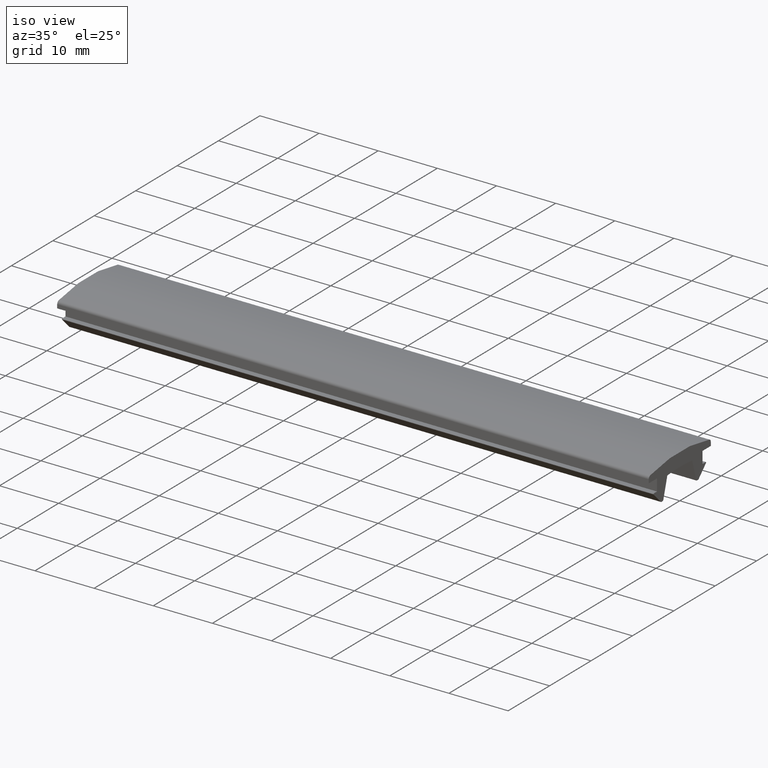
[diagram: clean part render]
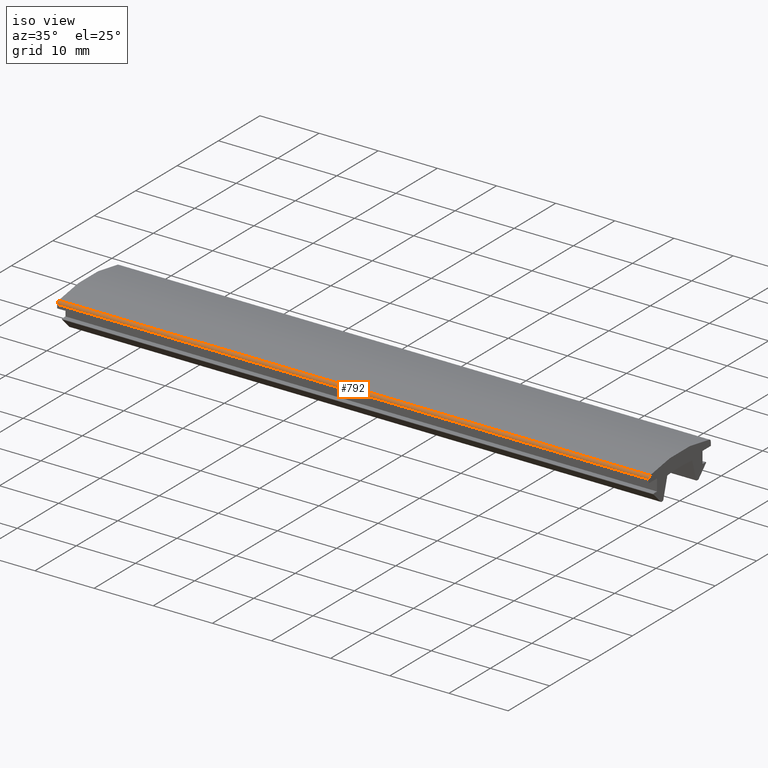
[diagram: same view with one face highlighted and labeled with its STEP entity id]
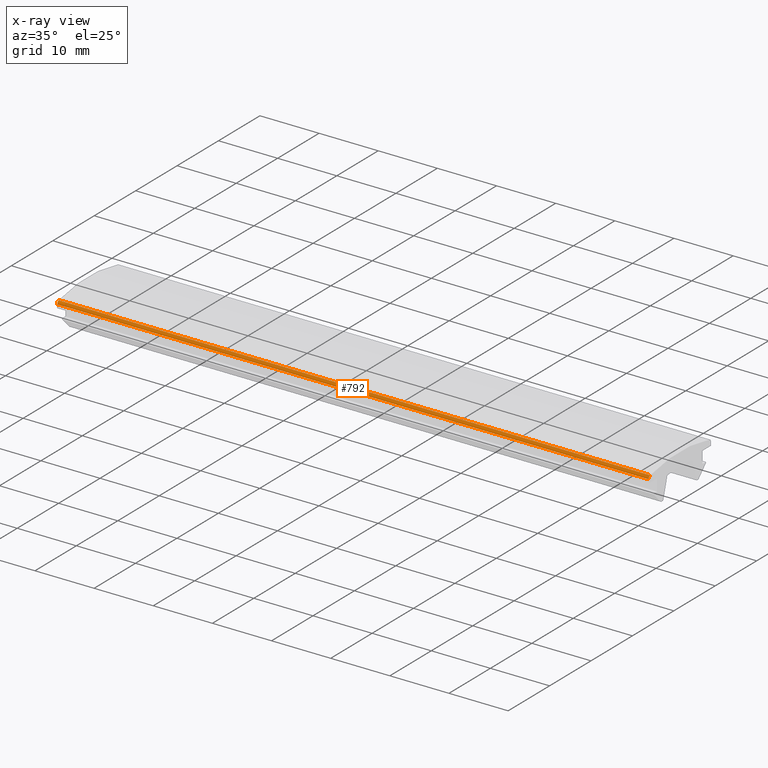
[diagram: x-ray of the same camera — body ghosted, the highlighted face saturated]
A machine part, iso view. The second image highlights one B-rep face of the part: STEP entity #792.
The next image is the same camera in x-ray: the body ghosted, the highlighted face saturated — about 0% of this face is hidden behind the body in this view.
In plain terms, the highlighted cylindrical surface (edge-blend (fillet) strip) has radius 0.5 mm, axis along (-1, -0, 0).
Its self-contained STEP definition (entity closure, byte-faithful):
#210=CARTESIAN_POINT('',(100.0,-7.124444444444433,1.448948320149374));
#211=VERTEX_POINT('',#210);
#219=CARTESIAN_POINT('',(100.0,-7.499999999999989,0.964682297960210));
#220=VERTEX_POINT('',#219);
#221=CARTESIAN_POINT('',(100.0,-6.999999999999989,0.964682297960210));
#222=DIRECTION('',(1.0,6.123234E-017,-3.749399E-033));
#223=DIRECTION('',(6.123234E-017,-1.0,6.123234E-017));
#224=AXIS2_PLACEMENT_3D('',#221,#222,#223);
#225=CIRCLE('',#224,0.500000000000000);
#226=EDGE_CURVE('',#211,#220,#225,.T.);
#300=CARTESIAN_POINT('',(4.592425E-016,-7.499999999999996,0.964682297960210));
#301=VERTEX_POINT('',#300);
#308=CARTESIAN_POINT('',(4.362464E-016,-7.124444444444439,1.448948320149374));
#309=VERTEX_POINT('',#308);
#310=CARTESIAN_POINT('',(4.286264E-016,-6.999999999999996,0.964682297960210));
#311=DIRECTION('',(-1.0,-6.123234E-017,3.749399E-033));
#312=DIRECTION('',(6.123234E-017,-1.0,6.123234E-017));
#313=AXIS2_PLACEMENT_3D('',#310,#311,#312);
#314=CIRCLE('',#313,0.500000000000000);
#315=EDGE_CURVE('',#301,#309,#314,.T.);
#468=CARTESIAN_POINT('',(100.0,-7.499999999999989,0.964682297960210));
#469=DIRECTION('',(-1.0,0.0,0.0));
#470=VECTOR('',#469,100.0);
#471=LINE('',#468,#470);
#472=EDGE_CURVE('',#220,#301,#471,.T.);
#753=CARTESIAN_POINT('',(4.362464E-016,-7.124444444444439,1.448948320149374));
#754=DIRECTION('',(1.0,0.0,0.0));
#755=VECTOR('',#754,100.0);
#756=LINE('',#753,#755);
#757=EDGE_CURVE('',#309,#211,#756,.T.);
#781=CARTESIAN_POINT('',(100.000000009999990,-6.999999999999989,0.964682297960210));
#782=DIRECTION('',(-1.0,-6.123234E-017,0.0));
#783=DIRECTION('',(-4.838690E-017,0.790217972741979,-0.612825877028342));
#784=AXIS2_PLACEMENT_3D('',#781,#782,#783);
#785=CYLINDRICAL_SURFACE('',#784,0.500000000000000);
#786=ORIENTED_EDGE('',*,*,#226,.F.);
#787=ORIENTED_EDGE('',*,*,#757,.F.);
#788=ORIENTED_EDGE('',*,*,#315,.F.);
#789=ORIENTED_EDGE('',*,*,#472,.F.);
#790=EDGE_LOOP('',(#786,#787,#788,#789));
#791=FACE_OUTER_BOUND('',#790,.T.);
#792=ADVANCED_FACE('',(#791),#785,.T.);